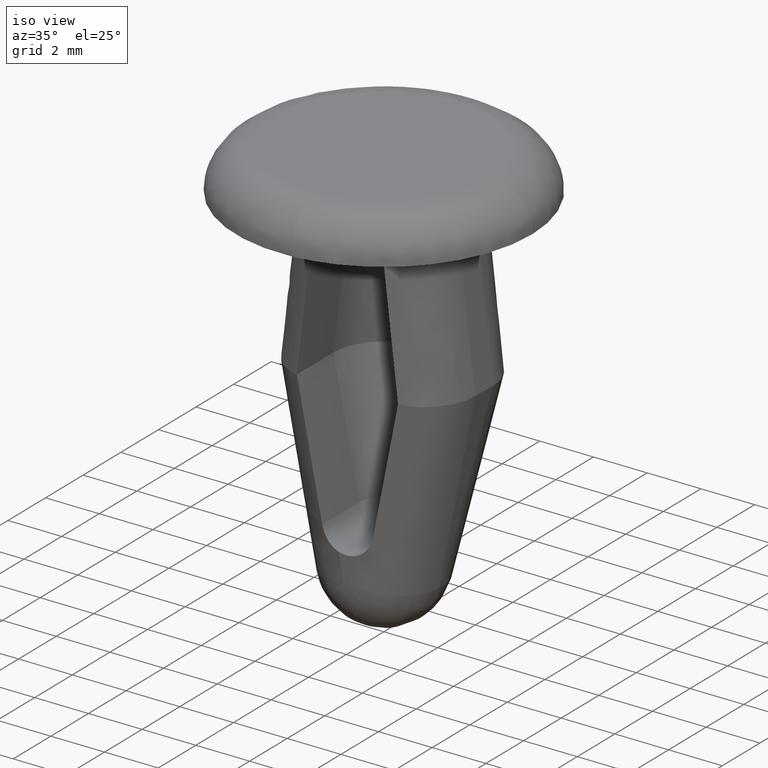
[diagram: clean part render]
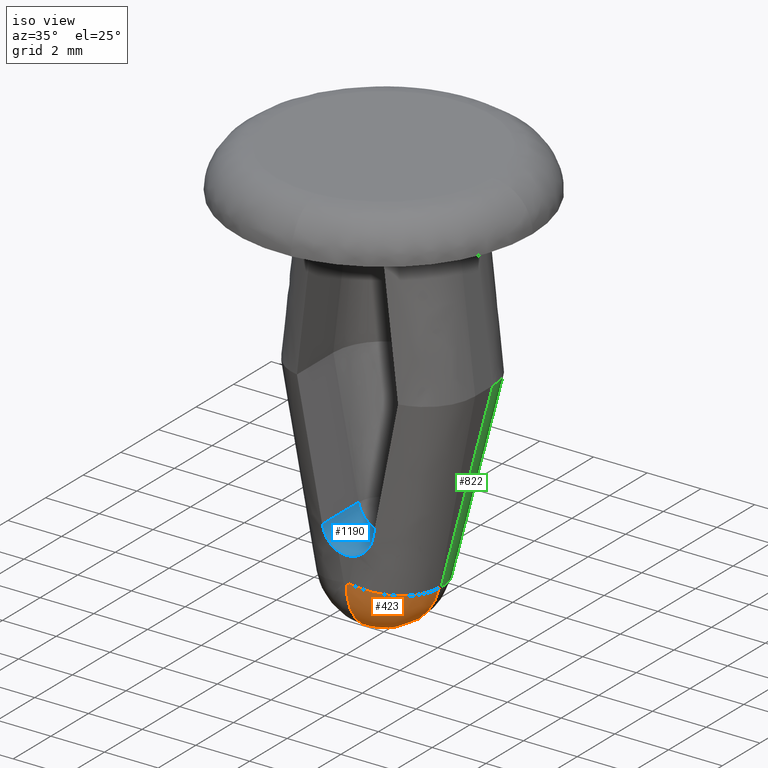
[diagram: same view with three faces highlighted in distinct colors, each labeled with its STEP entity id]
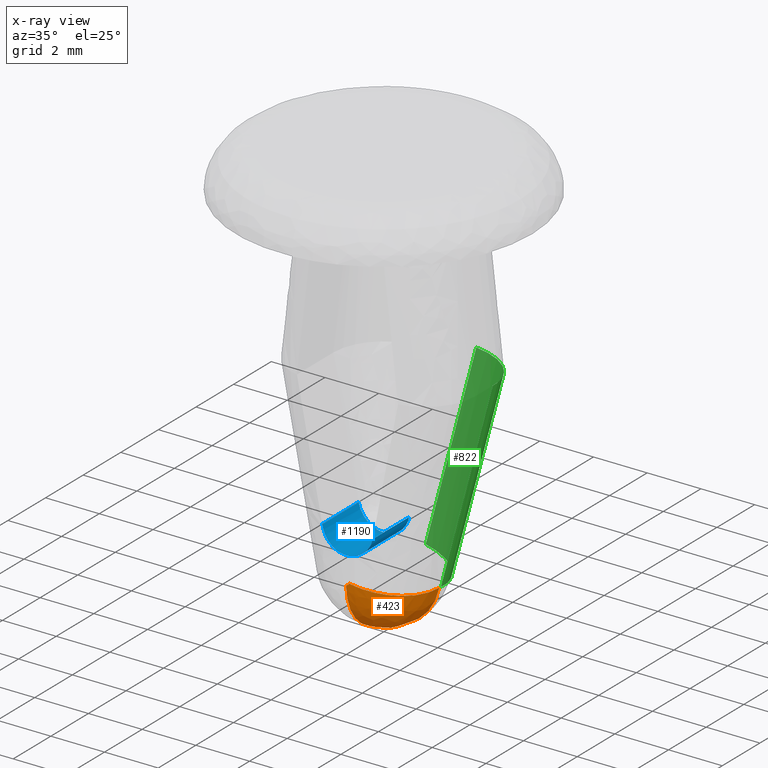
[diagram: x-ray of the same camera — body ghosted, the three highlighted faces saturated]
A machine part, iso view with three faces highlighted in distinct colors.
The next image is the same camera in x-ray (body ghosted, the three faces saturated) — at least one of them is partly hidden behind the body in this view.
Their STEP definitions:

[orange] entity #423 — the highlighted face is a freeform B-spline surface patch.
#287=CARTESIAN_POINT('',(0.000001022324268,-1.208791E-015,-14.500000999999401));
#288=VERTEX_POINT('',#287);
#304=CARTESIAN_POINT('',(-0.000000046189370,-1.999999999992820,-12.499997210671649));
#305=VERTEX_POINT('',#304);
#306=CARTESIAN_POINT('',(-0.000000046189370,-1.999999999992821,-12.499997210671657));
#307=CARTESIAN_POINT('',(0.000000256353691,-2.000002145847854,-13.632574742598138));
#308=CARTESIAN_POINT('',(0.000000671424372,-1.028739215463379,-14.215138203422480));
#309=CARTESIAN_POINT('',(0.000000874386286,-0.553809541416567,-14.500000999999473));
#310=CARTESIAN_POINT('',(0.000001022324268,-1.208791E-015,-14.500000999999399));
#318=(BOUNDED_CURVE()B_SPLINE_CURVE(2,(#306,#307,#308,#309,#310),.UNSPECIFIED.,.F.,.U.)B_SPLINE_CURVE_WITH_KNOTS((3,2,3),(0.016099071671460,0.333333333333333,0.500000000000000),.UNSPECIFIED.)CURVE()GEOMETRIC_REPRESENTATION_ITEM()RATIONAL_B_SPLINE_CURVE((0.986906397199308,0.864447641579397,1.0,0.928784300855728,0.928784300855728))REPRESENTATION_ITEM(''));
#319=EDGE_CURVE('',#305,#288,#318,.T.);
#354=CARTESIAN_POINT('',(0.0,-1.997498435543818,-12.400000999999900));
#355=CARTESIAN_POINT('',(0.0,-2.057478430929114,-13.598100469460446));
#356=CARTESIAN_POINT('',(0.0,-1.028739215464558,-14.215138203422811));
#357=CARTESIAN_POINT('',(0.0,-0.478817694953442,-14.544981106048125));
#358=CARTESIAN_POINT('',(0.0,0.160373949922309,-14.493560679614816));
#359=CARTESIAN_POINT('',(-1.523749E-015,-1.997498435543819,-12.400000999999900));
#360=CARTESIAN_POINT('',(1.052388105974277,-2.057478430929115,-13.598100469460441));
#361=CARTESIAN_POINT('',(1.594382480157335,-1.028739215464558,-14.215138203422812));
#362=CARTESIAN_POINT('',(1.884110300268308,-0.478817694953442,-14.544981106048130));
#363=CARTESIAN_POINT('',(1.838943561978277,0.160373949922309,-14.493560679614818));
#364=CARTESIAN_POINT('',(-1.720240E-015,-1.997498435543818,-12.400000999999898));
#365=CARTESIAN_POINT('',(1.188096252973166,-2.057478430929114,-12.554499001258016));
#366=CARTESIAN_POINT('',(1.799982192622094,-1.028739215464558,-12.634067600550495));
#367=CARTESIAN_POINT('',(2.127071158662103,-0.478817694953442,-12.676601689316694));
#368=CARTESIAN_POINT('',(2.076080053558608,0.160373949922309,-12.669970893368378));
#376=(BOUNDED_SURFACE()B_SPLINE_SURFACE(2,2,((#354,#359,#364),(#355,#360,#365),(#356,#361,#366),(#357,#362,#367),(#358,#363,#368)),.UNSPECIFIED.,.F.,.F.,.U.)B_SPLINE_SURFACE_WITH_KNOTS((3,2,3),(3,3),(0.0,0.333333333333333,0.524170851955283),(0.0,0.227706515680253),.UNSPECIFIED.)GEOMETRIC_REPRESENTATION_ITEM()RATIONAL_B_SPLINE_SURFACE(((1.0,0.733225222710459,0.952421285484734),(0.857568601711456,0.628790928979379,0.816766590033371),(1.0,0.733225222710459,0.952421285484734),(0.918456236130279,0.673435278286433,0.874757269076671),(0.930282129596508,0.682106321656960,0.886020501733782)))REPRESENTATION_ITEM('')SURFACE());
#377=CARTESIAN_POINT('',(2.060467000000000,0.0,-12.805556999999901));
#378=VERTEX_POINT('',#377);
#379=CARTESIAN_POINT('',(2.060467000000000,0.0,-12.805556999999901));
#380=CARTESIAN_POINT('',(1.726954474189892,0.0,-14.500000159282161));
#381=CARTESIAN_POINT('',(0.000001022324268,-1.208791E-015,-14.500000999999402));
#389=(BOUNDED_CURVE()B_SPLINE_CURVE(2,(#379,#380,#381),.UNSPECIFIED.,.F.,.U.)B_SPLINE_CURVE_WITH_KNOTS((3,3),(0.0,0.500000191611089),.UNSPECIFIED.)CURVE()GEOMETRIC_REPRESENTATION_ITEM()RATIONAL_B_SPLINE_CURVE((1.0,0.772373805928026,1.000000174462812))REPRESENTATION_ITEM(''));
#390=EDGE_CURVE('',#378,#288,#389,.T.);
#391=ORIENTED_EDGE('',*,*,#390,.F.);
#392=CARTESIAN_POINT('',(0.098117459996054,-2.0,-12.419313187288560));
#393=VERTEX_POINT('',#392);
#394=CARTESIAN_POINT('',(2.060466999999995,1.431147E-014,-12.805556999999849));
#395=CARTESIAN_POINT('',(2.060466338492981,-1.999999999997053,-12.805560360820687));
#396=CARTESIAN_POINT('',(0.098117459996054,-2.0,-12.419313187288560));
#404=(BOUNDED_CURVE()B_SPLINE_CURVE(2,(#394,#395,#396),.UNSPECIFIED.,.F.,.U.)CURVE()GEOMETRIC_REPRESENTATION_ITEM()QUASI_UNIFORM_CURVE()RATIONAL_B_SPLINE_CURVE((1.0,0.707106781186548,1.0))REPRESENTATION_ITEM(''));
#405=EDGE_CURVE('',#378,#393,#404,.T.);
#406=ORIENTED_EDGE('',*,*,#405,.T.);
#407=CARTESIAN_POINT('',(-0.000000046189370,-1.999999999992821,-12.499997210671655));
#408=CARTESIAN_POINT('',(0.082235903485423,-1.999999999996410,-12.499999141649491));
#409=CARTESIAN_POINT('',(0.098117459996054,-2.0,-12.419313187288560));
#417=(BOUNDED_CURVE()B_SPLINE_CURVE(2,(#407,#408,#409),.UNSPECIFIED.,.F.,.U.)B_SPLINE_CURVE_WITH_KNOTS((3,3),(0.500000181785788,1.0),.UNSPECIFIED.)CURVE()GEOMETRIC_REPRESENTATION_ITEM()RATIONAL_B_SPLINE_CURVE((0.999999834482857,0.772373373324162,1.0))REPRESENTATION_ITEM(''));
#418=EDGE_CURVE('',#305,#393,#417,.T.);
#419=ORIENTED_EDGE('',*,*,#418,.F.);
#420=ORIENTED_EDGE('',*,*,#319,.T.);
#421=EDGE_LOOP('',(#391,#406,#419,#420));
#422=FACE_OUTER_BOUND('',#421,.T.);
#423=ADVANCED_FACE('',(#422),#376,.T.);

[blue] entity #1190 — the highlighted face is a freeform B-spline surface patch.
#861=CARTESIAN_POINT('',(-0.940966835516280,0.0,-10.726186861776959));
#862=VERTEX_POINT('',#861);
#868=CARTESIAN_POINT('',(0.940966835516280,0.0,-10.726186861776959));
#869=VERTEX_POINT('',#868);
#934=CARTESIAN_POINT('',(-0.940966835516280,0.0,-10.726186861776959));
#935=CARTESIAN_POINT('',(-0.788658115864978,0.0,-11.499997999999898));
#936=CARTESIAN_POINT('',(0.0,0.0,-11.499997999999900));
#937=CARTESIAN_POINT('',(0.788658115864978,0.0,-11.499997999999898));
#938=CARTESIAN_POINT('',(0.940966835516280,0.0,-10.726186861776959));
#946=(BOUNDED_CURVE()B_SPLINE_CURVE(2,(#934,#935,#936,#937,#938),.UNSPECIFIED.,.F.,.U.)B_SPLINE_CURVE_WITH_KNOTS((3,2,3),(0.0,0.500000000000000,1.0),.UNSPECIFIED.)CURVE()GEOMETRIC_REPRESENTATION_ITEM()RATIONAL_B_SPLINE_CURVE((1.0,0.772374224544085,1.0,0.772374224544085,1.0))REPRESENTATION_ITEM(''));
#947=EDGE_CURVE('',#862,#869,#946,.T.);
#1087=CARTESIAN_POINT('',(0.940966835516280,-1.936491767458290,-10.726186861776959));
#1088=VERTEX_POINT('',#1087);
#1089=CARTESIAN_POINT('',(0.940966835516280,-1.936491767458290,-10.726186861776959));
#1090=CARTESIAN_POINT('',(0.940966835516280,0.0,-10.726186861776959));
#1091=QUASI_UNIFORM_CURVE('',1,(#1089,#1090),.UNSPECIFIED.,.F.,.U.);
#1092=EDGE_CURVE('',#1088,#869,#1091,.T.);
#1107=CARTESIAN_POINT('',(-0.947112080509861,-2.050000000000000,-10.691642143258990));
#1108=CARTESIAN_POINT('',(-0.947112080509861,0.051250000000000,-10.691642143258990));
#1109=CARTESIAN_POINT('',(-0.817290687433563,-2.049999999999999,-11.507726122814532));
#1110=CARTESIAN_POINT('',(-0.817290687433563,0.051250000000000,-11.507726122814532));
#1111=CARTESIAN_POINT('',(0.009018137845030,-2.050000000000000,-11.499955598108750));
#1112=CARTESIAN_POINT('',(0.009018137845030,0.051250000000000,-11.499955598108750));
#1113=CARTESIAN_POINT('',(0.835326963123622,-2.049999999999999,-11.492185073402959));
#1114=CARTESIAN_POINT('',(0.835326963123622,0.051250000000000,-11.492185073402959));
#1115=CARTESIAN_POINT('',(0.949778011798582,-2.050000000000000,-10.673803980485550));
#1116=CARTESIAN_POINT('',(0.949778011798582,0.051250000000000,-10.673803980485550));
#1124=(BOUNDED_SURFACE()B_SPLINE_SURFACE(1,2,((#1107,#1109,#1111,#1113,#1115),(#1108,#1110,#1112,#1114,#1116)),.UNSPECIFIED.,.F.,.F.,.U.)B_SPLINE_SURFACE_WITH_KNOTS((2,2),(3,2,3),(0.0,2.101250000000000),(0.0,1.0,2.0),.UNSPECIFIED.)GEOMETRIC_REPRESENTATION_ITEM()RATIONAL_B_SPLINE_SURFACE(((1.0,0.757564984384050,1.0,0.757564984384050,1.0),(1.0,0.757564984384050,1.0,0.757564984384050,1.0)))REPRESENTATION_ITEM('')SURFACE());
#1125=ORIENTED_EDGE('',*,*,#1092,.T.);
#1126=ORIENTED_EDGE('',*,*,#947,.F.);
#1127=CARTESIAN_POINT('',(-0.940971000000000,-1.936490855540440,-10.726187999999899));
#1128=VERTEX_POINT('',#1127);
#1129=CARTESIAN_POINT('',(-0.940971000000000,-1.936490855540440,-10.726187999999899));
#1130=CARTESIAN_POINT('',(-0.940966835516280,0.0,-10.726186861776959));
#1131=QUASI_UNIFORM_CURVE('',1,(#1129,#1130),.UNSPECIFIED.,.F.,.U.);
#1132=EDGE_CURVE('',#1128,#862,#1131,.T.);
#1133=ORIENTED_EDGE('',*,*,#1132,.F.);
#1134=CARTESIAN_POINT('',(-0.287763925295133,-2.0,-11.455806602570640));
#1135=VERTEX_POINT('',#1134);
#1136=CARTESIAN_POINT('',(-0.287763925295133,-2.0,-11.455806602570640));
#1137=CARTESIAN_POINT('',(-0.370441789798544,-1.999999915749110,-11.429800057769370));
#1138=CARTESIAN_POINT('',(-0.447612526329010,-1.995714077472007,-11.393440162023300));
#1139=CARTESIAN_POINT('',(-0.555544073266780,-1.986118696457403,-11.323872801970820));
#1140=CARTESIAN_POINT('',(-0.590348392616208,-1.982358700292805,-11.297969913676161));
#1141=CARTESIAN_POINT('',(-0.655338324107204,-1.974504542785576,-11.242462500067401));
#1142=CARTESIAN_POINT('',(-0.685767288507437,-1.970393337610640,-11.212735104494030));
#1143=CARTESIAN_POINT('',(-0.742577037396246,-1.962311974245184,-11.149348493298451));
#1144=CARTESIAN_POINT('',(-0.769006706406844,-1.958333039801596,-11.115618137467180));
#1145=CARTESIAN_POINT('',(-0.817459379469806,-1.951018871668586,-11.044310648368221));
#1146=CARTESIAN_POINT('',(-0.860616441862861,-1.944489861712354,-10.970504185598321));
#1147=CARTESIAN_POINT('',(-0.893568160716412,-1.940190977921174,-10.891837711646041));
#1148=CARTESIAN_POINT('',(-0.921318820003438,-1.937263108014182,-10.810679939032269));
#1149=CARTESIAN_POINT('',(-0.932604282714596,-1.936490899956532,-10.768694556920240));
#1150=CARTESIAN_POINT('',(-0.940971000000000,-1.936490855540440,-10.726187999999899));
#1151=B_SPLINE_CURVE_WITH_KNOTS('',3,(#1136,#1137,#1138,#1139,#1140,#1141,#1142,#1143,#1144,#1145,#1146,#1147,#1148,#1149,#1150),.UNSPECIFIED.,.F.,.U.,(4,2,2,2,2,1,2,4),(0.0,0.250000000000002,0.375000000000002,0.500000000000002,0.625000000000001,0.750000000000001,0.875000000000000,1.0),.UNSPECIFIED.);
#1152=EDGE_CURVE('',#1135,#1128,#1151,.T.);
#1153=ORIENTED_EDGE('',*,*,#1152,.F.);
#1154=CARTESIAN_POINT('',(0.287763472535683,-2.0,-11.455806744988120));
#1155=VERTEX_POINT('',#1154);
#1156=CARTESIAN_POINT('',(-0.287763925295132,-2.0,-11.455806602570640));
#1157=CARTESIAN_POINT('',(-0.000000248778748,-2.0,-11.546324011363504));
#1158=CARTESIAN_POINT('',(0.287763472535681,-2.0,-11.455806744988120));
#1166=(BOUNDED_CURVE()B_SPLINE_CURVE(2,(#1156,#1157,#1158),.UNSPECIFIED.,.F.,.U.)CURVE()GEOMETRIC_REPRESENTATION_ITEM()QUASI_UNIFORM_CURVE()RATIONAL_B_SPLINE_CURVE((1.0,0.953920376904683,1.0))REPRESENTATION_ITEM(''));
#1167=EDGE_CURVE('',#1135,#1155,#1166,.T.);
#1168=ORIENTED_EDGE('',*,*,#1167,.T.);
#1169=CARTESIAN_POINT('',(0.940966835516280,-1.936491767458290,-10.726186861776959));
#1170=CARTESIAN_POINT('',(0.924234128218563,-1.936491774269013,-10.811198115953619));
#1171=CARTESIAN_POINT('',(0.896588527087490,-1.939571902236978,-10.891960560645980));
#1172=CARTESIAN_POINT('',(0.839284119421068,-1.947717407293142,-11.006979400643420));
#1173=CARTESIAN_POINT('',(0.817347750245597,-1.951035868159272,-11.044457164013631));
#1174=CARTESIAN_POINT('',(0.769297062207696,-1.958289395175314,-11.115199648861340));
#1175=CARTESIAN_POINT('',(0.743087701705373,-1.962236659502199,-11.148721062063011));
#1176=CARTESIAN_POINT('',(0.686338332526431,-1.970315022752130,-11.212149012753400));
#1177=CARTESIAN_POINT('',(0.655741810210160,-1.974454617628420,-11.242104674107740));
#1178=CARTESIAN_POINT('',(0.590233979915765,-1.982373974258041,-11.298077512488410));
#1179=CARTESIAN_POINT('',(0.555953442161691,-1.986074905149657,-11.323568650760571));
#1180=CARTESIAN_POINT('',(0.484417663457602,-1.992449532426842,-11.369755287011589));
#1181=CARTESIAN_POINT('',(0.447162315689705,-1.995125190911976,-11.390450358469611));
#1182=CARTESIAN_POINT('',(0.369584038392454,-1.998903358869048,-11.426960499783229));
#1183=CARTESIAN_POINT('',(0.329096179476837,-2.000000000000002,-11.442805371405919));
#1184=CARTESIAN_POINT('',(0.287763472535689,-2.0,-11.455806744988100));
#1185=B_SPLINE_CURVE_WITH_KNOTS('',3,(#1169,#1170,#1171,#1172,#1173,#1174,#1175,#1176,#1177,#1178,#1179,#1180,#1181,#1182,#1183,#1184),.UNSPECIFIED.,.F.,.U.,(4,2,2,2,2,2,2,4),(0.0,0.250000000000000,0.375000000000000,0.500000000000000,0.625000000000000,0.750000000000000,0.875000000000000,1.0),.UNSPECIFIED.);
#1186=EDGE_CURVE('',#1088,#1155,#1185,.T.);
#1187=ORIENTED_EDGE('',*,*,#1186,.F.);
#1188=EDGE_LOOP('',(#1125,#1126,#1133,#1153,#1168,#1187));
#1189=FACE_OUTER_BOUND('',#1188,.T.);
#1190=ADVANCED_FACE('',(#1189),#1124,.F.);

[green] entity #822 — the highlighted face is a freeform B-spline surface patch.
#462=CARTESIAN_POINT('',(3.399835850846000,0.932280559729793,-6.000823807220490));
#463=VERTEX_POINT('',#462);
#477=CARTESIAN_POINT('',(1.409290136446944,2.899874629867465,-6.001104645729121));
#478=VERTEX_POINT('',#477);
#479=CARTESIAN_POINT('',(1.409290136446944,2.899874629867465,-6.001104645729121));
#480=CARTESIAN_POINT('',(1.539195482584038,2.898433724604089,-6.012862703546517));
#481=CARTESIAN_POINT('',(1.667152300435090,2.884869627807952,-6.020839694423225));
#482=CARTESIAN_POINT('',(1.856035149620211,2.846732625000085,-6.030606312350610));
#483=CARTESIAN_POINT('',(1.918487989630921,2.831038622668656,-6.033433330639365));
#484=CARTESIAN_POINT('',(2.042339490942274,2.793529565168996,-6.038400116163806));
#485=CARTESIAN_POINT('',(2.103996402826592,2.771583282215558,-6.040543546835728));
#486=CARTESIAN_POINT('',(2.283640071198382,2.697716052913412,-6.045958796958082));
#487=CARTESIAN_POINT('',(2.397339558527087,2.637650908999855,-6.048282117964615));
#488=CARTESIAN_POINT('',(2.558844361238536,2.531423587179400,-6.050193157642068));
#489=CARTESIAN_POINT('',(2.611161941174483,2.493308358589701,-6.050562851835291));
#490=CARTESIAN_POINT('',(2.712641857159010,2.411451858999346,-6.050781098877351));
#491=CARTESIAN_POINT('',(2.761058259905030,2.368302997884772,-6.050627495127116));
#492=CARTESIAN_POINT('',(2.899066293454310,2.232813601928290,-6.049440988755995));
#493=CARTESIAN_POINT('',(2.981703923759742,2.134307362350870,-6.047690219827219));
#494=CARTESIAN_POINT('',(3.091356801559012,1.974056276482330,-6.043709272806515));
#495=CARTESIAN_POINT('',(3.125634613540867,1.918261516799279,-6.042144550918422));
#496=CARTESIAN_POINT('',(3.187911089515958,1.804691897344811,-6.038631117337101));
#497=CARTESIAN_POINT('',(3.216073822634628,1.746729651654475,-6.036679318380614));
#498=CARTESIAN_POINT('',(3.291821250242516,1.569383350783615,-6.030271165037437));
#499=CARTESIAN_POINT('',(3.330764034027750,1.446502776754717,-6.025263290772733));
#500=CARTESIAN_POINT('',(3.384443097760252,1.191463567469566,-6.013843620990939));
#501=CARTESIAN_POINT('',(3.398506568616759,1.062562276244131,-6.007577294807011));
#502=CARTESIAN_POINT('',(3.399835850846000,0.932280559729793,-6.000823807220490));
#503=B_SPLINE_CURVE_WITH_KNOTS('',3,(#479,#480,#481,#482,#483,#484,#485,#486,#487,#488,#489,#490,#491,#492,#493,#494,#495,#496,#497,#498,#499,#500,#501,#502),.UNSPECIFIED.,.F.,.U.,(4,2,2,2,2,2,2,2,2,2,2,4),(0.0,0.125000000000000,0.187499999999999,0.249999999999999,0.374999999999999,0.437499999999999,0.500000000000000,0.625000000000000,0.687500000000000,0.750000000000000,0.875000000000000,1.0),.UNSPECIFIED.);
#504=EDGE_CURVE('',#478,#463,#503,.T.);
#743=CARTESIAN_POINT('',(0.098117459995981,2.083535463059265,-12.662585706211900));
#744=VERTEX_POINT('',#743);
#745=CARTESIAN_POINT('',(2.060467000000000,0.098386383097671,-12.805556999999901));
#746=VERTEX_POINT('',#745);
#747=CARTESIAN_POINT('',(0.098117459995980,2.083535463059263,-12.662585706211910));
#748=CARTESIAN_POINT('',(2.015427784048682,2.037973350277618,-13.034381111493285));
#749=CARTESIAN_POINT('',(2.060467000000000,0.098386383097671,-12.805556999999901));
#757=(BOUNDED_CURVE()B_SPLINE_CURVE(2,(#747,#748,#749),.UNSPECIFIED.,.F.,.U.)CURVE()GEOMETRIC_REPRESENTATION_ITEM()QUASI_UNIFORM_CURVE()RATIONAL_B_SPLINE_CURVE((1.0,0.715363833231817,1.0))REPRESENTATION_ITEM(''));
#758=EDGE_CURVE('',#744,#746,#757,.T.);
#794=CARTESIAN_POINT('',(0.001271476858914,2.063080078250304,-12.820971727982830));
#795=CARTESIAN_POINT('',(1.413870754571454,2.942567683592304,-5.644187538119725));
#796=CARTESIAN_POINT('',(2.122891579405095,2.081819310381820,-13.240864519393059));
#797=CARTESIAN_POINT('',(3.535490857117635,2.961306915723819,-6.064080329529960));
#798=CARTESIAN_POINT('',(2.025319980334782,-0.060386168796294,-12.959140465288067));
#799=CARTESIAN_POINT('',(3.437919258047323,0.819101436545706,-5.782356275424967));
#807=(BOUNDED_SURFACE()B_SPLINE_SURFACE(1,2,((#794,#796,#798),(#795,#797,#799)),.UNSPECIFIED.,.F.,.F.,.U.)B_SPLINE_SURFACE_WITH_KNOTS((2,2),(3,3),(0.0,7.367168144898905),(0.0,3.498460821905335),.UNSPECIFIED.)GEOMETRIC_REPRESENTATION_ITEM()RATIONAL_B_SPLINE_SURFACE(((1.0,0.677580665317837,0.996043510010398),(1.0,0.677580665317837,0.996043510010398)))REPRESENTATION_ITEM('')SURFACE());
#808=CARTESIAN_POINT('',(1.409290136446944,2.899874629867465,-6.001104645729121));
#809=CARTESIAN_POINT('',(0.098117459995981,2.083535463059265,-12.662585706211900));
#810=QUASI_UNIFORM_CURVE('',1,(#808,#809),.UNSPECIFIED.,.F.,.U.);
#811=EDGE_CURVE('',#478,#744,#810,.T.);
#812=ORIENTED_EDGE('',*,*,#811,.F.);
#813=ORIENTED_EDGE('',*,*,#504,.T.);
#814=CARTESIAN_POINT('',(2.060467000000000,0.098386383097671,-12.805556999999901));
#815=CARTESIAN_POINT('',(3.399835850846000,0.932280559729793,-6.000823807220490));
#816=QUASI_UNIFORM_CURVE('',1,(#814,#815),.UNSPECIFIED.,.F.,.U.);
#817=EDGE_CURVE('',#746,#463,#816,.T.);
#818=ORIENTED_EDGE('',*,*,#817,.F.);
#819=ORIENTED_EDGE('',*,*,#758,.F.);
#820=EDGE_LOOP('',(#812,#813,#818,#819));
#821=FACE_OUTER_BOUND('',#820,.T.);
#822=ADVANCED_FACE('',(#821),#807,.T.);